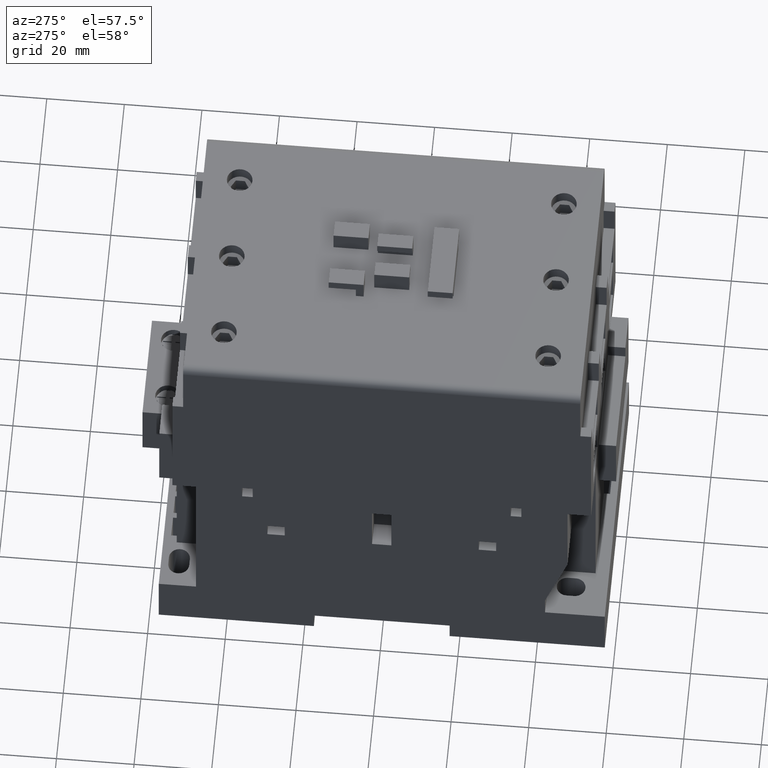
[diagram: clean part render]
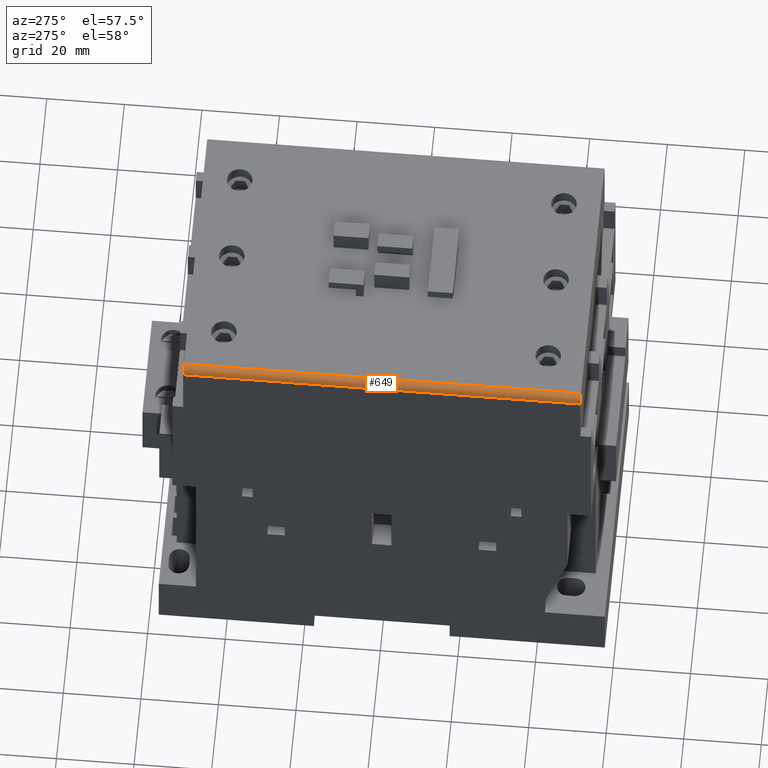
[diagram: same view with one face highlighted and labeled with its STEP entity id]
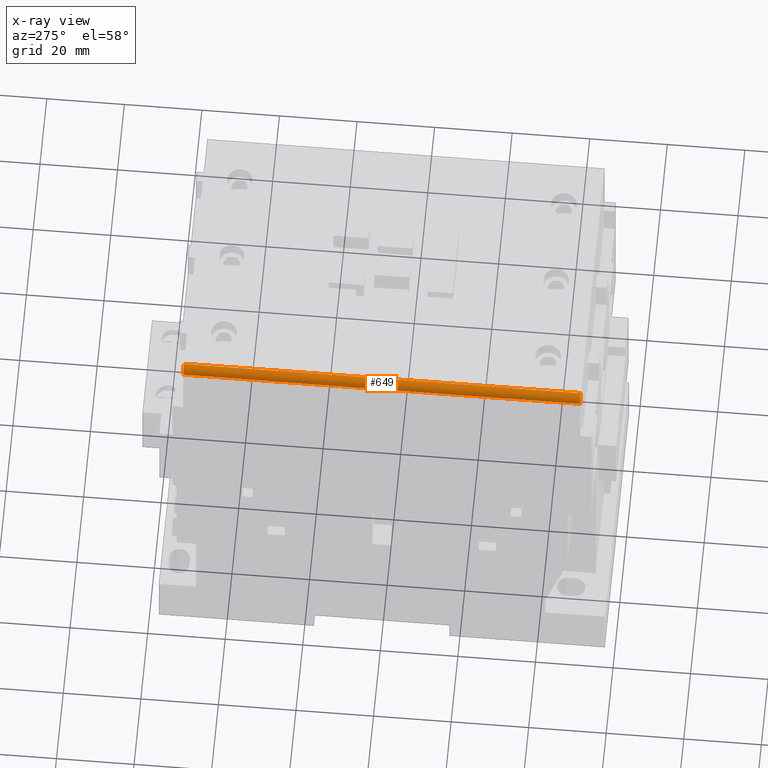
[diagram: x-ray of the same camera — body ghosted, the highlighted face saturated]
A machine part, auxiliary view. The second image highlights one B-rep face of the part: STEP entity #649.
The next image is the same camera in x-ray: the body ghosted, the highlighted face saturated — about 0% of this face is hidden behind the body in this view.
In plain terms, the highlighted cylindrical surface (edge-blend (fillet) strip) has radius 2 mm, axis along (0, -1, 0).
Its self-contained STEP definition (entity closure, byte-faithful):
#117=CYLINDRICAL_SURFACE('',#7542,2.);
#157=CIRCLE('',#7190,2.);
#162=CIRCLE('',#7268,2.);
#649=ADVANCED_FACE('',(#1326),#117,.T.);
#1326=FACE_OUTER_BOUND('',#1768,.T.);
#1768=EDGE_LOOP('',(#3678,#3679,#3680,#3681));
#3678=ORIENTED_EDGE('',*,*,#4772,.F.);
#3679=ORIENTED_EDGE('',*,*,#4406,.F.);
#3680=ORIENTED_EDGE('',*,*,#4904,.F.);
#3681=ORIENTED_EDGE('',*,*,#4440,.F.);
#3750=VERTEX_POINT('',#9424);
#3751=VERTEX_POINT('',#9426);
#3780=VERTEX_POINT('',#9489);
#3781=VERTEX_POINT('',#9491);
#4406=EDGE_CURVE('',#3750,#3751,#5369,.T.);
#4440=EDGE_CURVE('',#3780,#3781,#5397,.T.);
#4772=EDGE_CURVE('',#3751,#3780,#157,.T.);
#4904=EDGE_CURVE('',#3781,#3750,#162,.T.);
#5369=LINE('',#9425,#6274);
#5397=LINE('',#9490,#6302);
#6274=VECTOR('',#7627,1.);
#6302=VECTOR('',#7669,1.);
#7190=AXIS2_PLACEMENT_3D('',#10145,#8071,#8072);
#7268=AXIS2_PLACEMENT_3D('',#10425,#8354,#8355);
#7542=AXIS2_PLACEMENT_3D('',#11275,#9291,#9292);
#7627=DIRECTION('',(0.,-1.,0.));
#7669=DIRECTION('',(0.,1.,0.));
#8071=DIRECTION('',(0.,-1.,0.));
#8072=DIRECTION('',(0.,0.,-1.));
#8354=DIRECTION('',(-4.6858133692651E-015,1.,-3.20133513444393E-016));
#8355=DIRECTION('',(-1.,-3.46944695195361E-015,0.));
#9291=DIRECTION('',(0.,-1.,0.));
#9292=DIRECTION('',(0.,0.,-1.));
#9424=CARTESIAN_POINT('',(-33.8,51.1999999999999,112.55));
#9425=CARTESIAN_POINT('',(-33.8,-51.2,112.55));
#9426=CARTESIAN_POINT('',(-33.8,-51.2,112.55));
#9489=CARTESIAN_POINT('',(-35.8,-51.2,110.55));
#9490=CARTESIAN_POINT('',(-35.8,51.1999999999999,110.55));
#9491=CARTESIAN_POINT('',(-35.8000000000002,51.1999999999999,110.55));
#10145=CARTESIAN_POINT('',(-33.8,-51.2,110.55));
#10425=CARTESIAN_POINT('',(-33.8,51.1999999999999,110.55));
#11275=CARTESIAN_POINT('',(-33.8,-17.5,110.55));